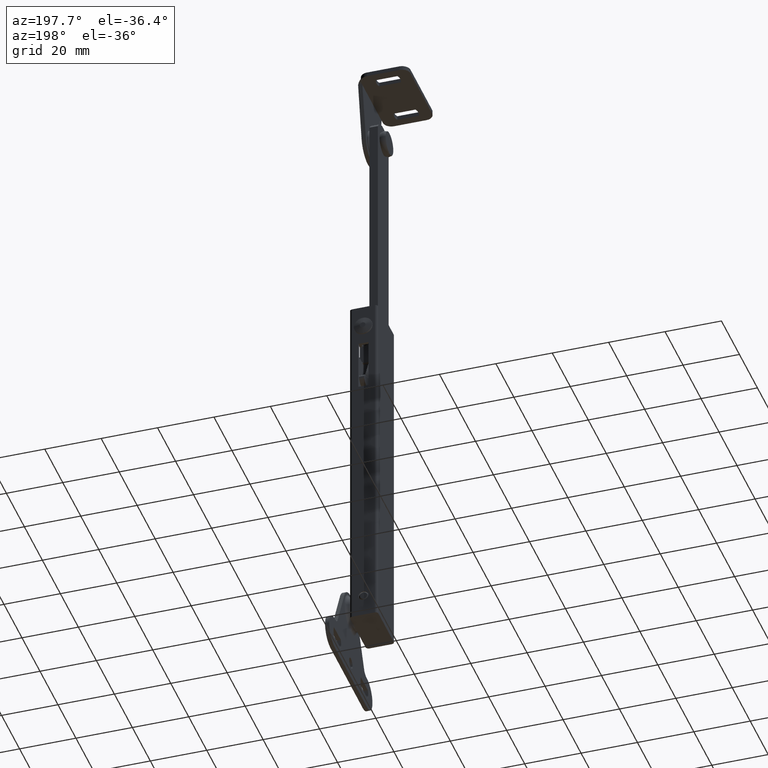
[diagram: clean part render]
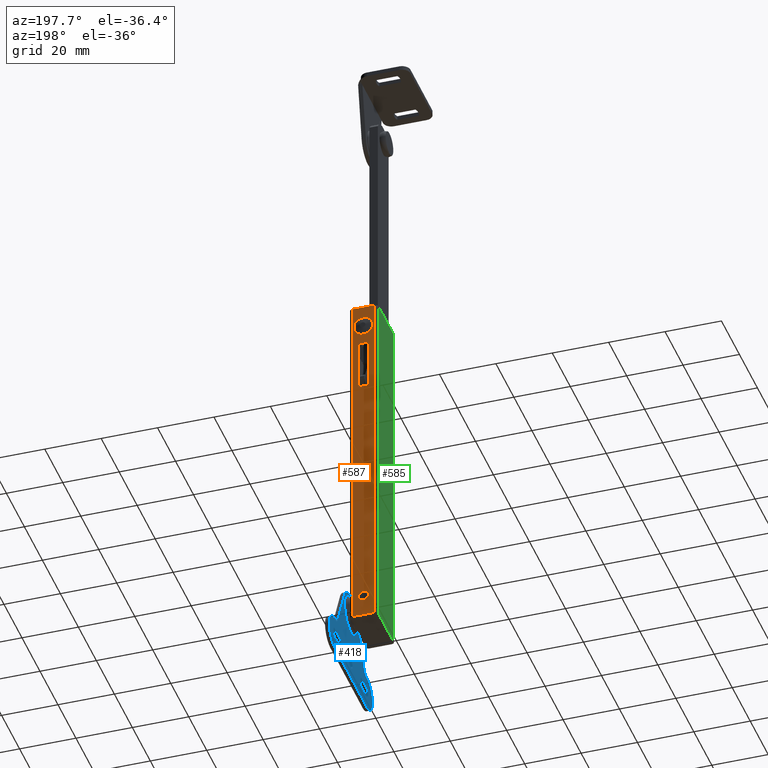
[diagram: same view with three faces highlighted in distinct colors, each labeled with its STEP entity id]
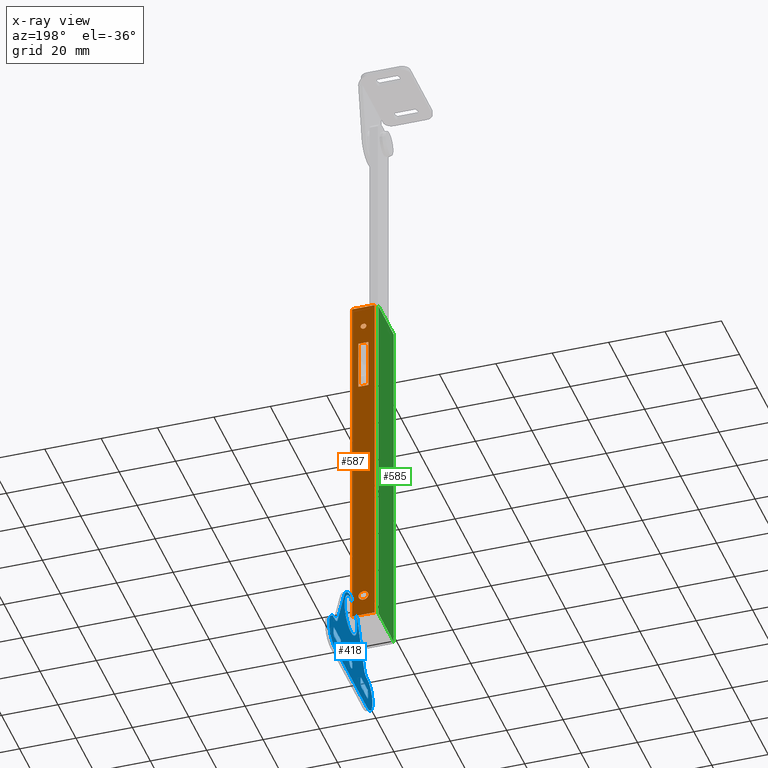
[diagram: x-ray of the same camera — body ghosted, the three highlighted faces saturated]
A machine part, auxiliary view with three faces highlighted in distinct colors.
The next image is the same camera in x-ray (body ghosted, the three faces saturated) — at least one of them is partly hidden behind the body in this view.
Their STEP definitions:

[orange] entity #587 — the highlighted planar face has unit normal (0, 1, 0).
#587=ADVANCED_FACE('',(#2357,#2358,#2359,#2360),#2356,.T.);
#2356=PLANE('',#3980);
#2357=FACE_OUTER_BOUND('',#3981,.T.);
#2358=FACE_BOUND('',#3982,.T.);
#2359=FACE_BOUND('',#3983,.T.);
#2360=FACE_BOUND('',#3984,.T.);
#3977=CARTESIAN_POINT('',(-9.79999999476E+00,9.50000000000E+00,-1.80000000000E+01));
#3978=DIRECTION('',(0.00000000000E+00,1.00000000000E+00,0.00000000000E+00));
#3979=DIRECTION('',(0.00000000000E+00,0.00000000000E+00,1.00000000000E+00));
#3980=AXIS2_PLACEMENT_3D('',#3977,#3978,#3979);
#3981=EDGE_LOOP('',(#5009,#5010,#5011,#5012));
#3982=EDGE_LOOP('',(#5013,#5014));
#3983=EDGE_LOOP('',(#5015,#5016,#5017,#5018));
#3984=EDGE_LOOP('',(#5019,#5020));
#5009=ORIENTED_EDGE('',*,*,#5630,.F.);
#5010=ORIENTED_EDGE('',*,*,#5631,.F.);
#5011=ORIENTED_EDGE('',*,*,#5599,.T.);
#5012=ORIENTED_EDGE('',*,*,#5629,.T.);
#5013=ORIENTED_EDGE('',*,*,#5632,.T.);
#5014=ORIENTED_EDGE('',*,*,#5633,.T.);
#5015=ORIENTED_EDGE('',*,*,#5634,.F.);
#5016=ORIENTED_EDGE('',*,*,#5635,.F.);
#5017=ORIENTED_EDGE('',*,*,#5636,.F.);
#5018=ORIENTED_EDGE('',*,*,#5637,.F.);
#5019=ORIENTED_EDGE('',*,*,#5638,.T.);
#5020=ORIENTED_EDGE('',*,*,#5639,.T.);
#5599=EDGE_CURVE('',#8458,#8451,#8459,.T.);
#5629=EDGE_CURVE('',#8451,#8654,#8661,.T.);
#5630=EDGE_CURVE('',#8667,#8654,#8668,.T.);
#5631=EDGE_CURVE('',#8458,#8667,#8674,.T.);
#5632=EDGE_CURVE('',#8680,#8681,#8682,.T.);
#5633=EDGE_CURVE('',#8681,#8680,#8688,.T.);
#5634=EDGE_CURVE('',#8694,#8695,#8696,.T.);
#5635=EDGE_CURVE('',#8702,#8694,#8703,.T.);
#5636=EDGE_CURVE('',#8709,#8702,#8710,.T.);
#5637=EDGE_CURVE('',#8695,#8709,#8716,.T.);
#5638=EDGE_CURVE('',#8722,#8723,#8724,.T.);
#5639=EDGE_CURVE('',#8723,#8722,#8730,.T.);
#8451=VERTEX_POINT('',#10753);
#8458=VERTEX_POINT('',#10758);
#8459=LINE('',#10759,#10760);
#8654=VERTEX_POINT('',#10878);
#8661=LINE('',#10883,#10884);
#8667=VERTEX_POINT('',#10886);
#8668=LINE('',#10887,#10888);
#8674=LINE('',#10890,#10891);
#8680=VERTEX_POINT('',#10893);
#8681=VERTEX_POINT('',#10894);
#8682=CIRCLE('',#10898,1.75000000000E+00);
#8688=CIRCLE('',#10902,1.75000000000E+00);
#8694=VERTEX_POINT('',#10903);
#8695=VERTEX_POINT('',#10904);
#8696=LINE('',#10905,#10906);
#8702=VERTEX_POINT('',#10908);
#8703=LINE('',#10909,#10910);
#8709=VERTEX_POINT('',#10912);
#8710=LINE('',#10913,#10914);
#8716=LINE('',#10916,#10917);
#8722=VERTEX_POINT('',#10919);
#8723=VERTEX_POINT('',#10920);
#8724=CIRCLE('',#10924,1.00000000000E+00);
#8730=CIRCLE('',#10928,1.00000000000E+00);
#10753=CARTESIAN_POINT('',(-9.00000000000E+00,9.50000000000E+00,-8.00000000000E+00));
#10758=CARTESIAN_POINT('',(-1.00000005236E+00,9.50000000000E+00,-8.00000000000E+00));
#10759=CARTESIAN_POINT('',(-1.00000005236E+00,9.50000000000E+00,-8.00000000000E+00));
#10760=VECTOR('',#10761,7.99999994764E+00);
#10761=DIRECTION('',(-1.00000000000E+00,0.00000000000E+00,0.00000000000E+00));
#10878=CARTESIAN_POINT('',(-9.00000000000E+00,9.50000000000E+00,1.21000000000E+02));
#10883=CARTESIAN_POINT('',(-9.00000000000E+00,9.50000000000E+00,-8.00000000000E+00));
#10884=VECTOR('',#10885,1.29000000000E+02);
#10885=DIRECTION('',(0.00000000000E+00,0.00000000000E+00,1.00000000000E+00));
#10886=CARTESIAN_POINT('',(-1.00000005236E+00,9.50000000000E+00,1.21000000000E+02));
#10887=CARTESIAN_POINT('',(-1.00000005236E+00,9.50000000000E+00,1.21000000000E+02));
#10888=VECTOR('',#10889,7.99999994764E+00);
#10889=DIRECTION('',(-1.00000000000E+00,0.00000000000E+00,0.00000000000E+00));
#10890=CARTESIAN_POINT('',(-1.00000005236E+00,9.50000000000E+00,-8.00000000000E+00));
#10891=VECTOR('',#10892,1.29000000000E+02);
#10892=DIRECTION('',(0.00000000000E+00,0.00000000000E+00,1.00000000000E+00));
#10893=CARTESIAN_POINT('',(-5.00000000000E+00,9.50000000000E+00,1.75000000000E+00));
#10894=CARTESIAN_POINT('',(-5.00000000000E+00,9.50000000000E+00,-1.75000000000E+00));
#10895=CARTESIAN_POINT('',(-5.00000000000E+00,9.50000000000E+00,0.00000000000E+00));
#10896=DIRECTION('',(-0.00000000000E+00,-1.00000000000E+00,0.00000000000E+00));
#10897=DIRECTION('',(-1.22460635382E-16,0.00000000000E+00,1.00000000000E+00));
#10898=AXIS2_PLACEMENT_3D('',#10895,#10896,#10897);
#10899=CARTESIAN_POINT('',(-5.00000000000E+00,9.50000000000E+00,0.00000000000E+00));
#10900=DIRECTION('',(-0.00000000000E+00,-1.00000000000E+00,0.00000000000E+00));
#10901=DIRECTION('',(-1.22460635382E-16,0.00000000000E+00,1.00000000000E+00));
#10902=AXIS2_PLACEMENT_3D('',#10899,#10900,#10901);
#10903=CARTESIAN_POINT('',(-6.79998800000E+00,9.50000000000E+00,8.80000000000E+01));
#10904=CARTESIAN_POINT('',(-6.79998800000E+00,9.50000000000E+00,1.06000000000E+02));
#10905=CARTESIAN_POINT('',(-6.79998800000E+00,9.50000000000E+00,8.80000000000E+01));
#10906=VECTOR('',#10907,1.80000000000E+01);
#10907=DIRECTION('',(0.00000000000E+00,0.00000000000E+00,1.00000000000E+00));
#10908=CARTESIAN_POINT('',(-3.19998200000E+00,9.50000000000E+00,8.80000000000E+01));
#10909=CARTESIAN_POINT('',(-3.19998200000E+00,9.50000000000E+00,8.80000000000E+01));
#10910=VECTOR('',#10911,3.60000600000E+00);
#10911=DIRECTION('',(-1.00000000000E+00,0.00000000000E+00,0.00000000000E+00));
#10912=CARTESIAN_POINT('',(-3.19998200000E+00,9.50000000000E+00,1.06000000000E+02));
#10913=CARTESIAN_POINT('',(-3.19998200000E+00,9.50000000000E+00,1.06000000000E+02));
#10914=VECTOR('',#10915,1.80000000000E+01);
#10915=DIRECTION('',(0.00000000000E+00,0.00000000000E+00,-1.00000000000E+00));
#10916=CARTESIAN_POINT('',(-6.79998800000E+00,9.50000000000E+00,1.06000000000E+02));
#10917=VECTOR('',#10918,3.60000600000E+00);
#10918=DIRECTION('',(1.00000000000E+00,0.00000000000E+00,0.00000000000E+00));
#10919=CARTESIAN_POINT('',(-5.00000000000E+00,9.50000000000E+00,1.14000000000E+02));
#10920=CARTESIAN_POINT('',(-5.00000000000E+00,9.50000000000E+00,1.12000000000E+02));
#10921=CARTESIAN_POINT('',(-5.00000000000E+00,9.50000000000E+00,1.13000000000E+02));
#10922=DIRECTION('',(-0.00000000000E+00,-1.00000000000E+00,0.00000000000E+00));
#10923=DIRECTION('',(-1.22460635382E-16,0.00000000000E+00,1.00000000000E+00));
#10924=AXIS2_PLACEMENT_3D('',#10921,#10922,#10923);
#10925=CARTESIAN_POINT('',(-5.00000000000E+00,9.50000000000E+00,1.13000000000E+02));
#10926=DIRECTION('',(-0.00000000000E+00,-1.00000000000E+00,0.00000000000E+00));
#10927=DIRECTION('',(-1.22460635382E-16,0.00000000000E+00,1.00000000000E+00));
#10928=AXIS2_PLACEMENT_3D('',#10925,#10926,#10927);

[blue] entity #418 — the highlighted planar face has unit normal (-1, 0, 0).
#418=ADVANCED_FACE('',(#637,#638,#639,#640,#641),#636,.T.);
#636=PLANE('',#2727);
#637=FACE_OUTER_BOUND('',#2728,.T.);
#638=FACE_BOUND('',#2729,.T.);
#639=FACE_BOUND('',#2730,.T.);
#640=FACE_BOUND('',#2731,.T.);
#641=FACE_BOUND('',#2732,.T.);
#2724=CARTESIAN_POINT('',(2.50000000000E+00,-2.90215549581E+01,1.14027687298E+01));
#2725=DIRECTION('',(-1.00000000000E+00,0.00000000000E+00,0.00000000000E+00));
#2726=DIRECTION('',(0.00000000000E+00,1.00000000000E+00,0.00000000000E+00));
#2727=AXIS2_PLACEMENT_3D('',#2724,#2725,#2726);
#2728=EDGE_LOOP('',(#4182,#4183,#4184,#4185,#4186,#4187,#4188,#4189,#4190));
#2729=EDGE_LOOP('',(#4191,#4192,#4193,#4194));
#2730=EDGE_LOOP('',(#4195,#4196,#4197,#4198));
#2731=EDGE_LOOP('',(#4199,#4200));
#2732=EDGE_LOOP('',(#4201,#4202));
#4182=ORIENTED_EDGE('',*,*,#5206,.F.);
#4183=ORIENTED_EDGE('',*,*,#5207,.F.);
#4184=ORIENTED_EDGE('',*,*,#5208,.T.);
#4185=ORIENTED_EDGE('',*,*,#5209,.F.);
#4186=ORIENTED_EDGE('',*,*,#5210,.F.);
#4187=ORIENTED_EDGE('',*,*,#5211,.F.);
#4188=ORIENTED_EDGE('',*,*,#5212,.F.);
#4189=ORIENTED_EDGE('',*,*,#5213,.T.);
#4190=ORIENTED_EDGE('',*,*,#5214,.F.);
#4191=ORIENTED_EDGE('',*,*,#5215,.T.);
#4192=ORIENTED_EDGE('',*,*,#5216,.F.);
#4193=ORIENTED_EDGE('',*,*,#5217,.T.);
#4194=ORIENTED_EDGE('',*,*,#5218,.F.);
#4195=ORIENTED_EDGE('',*,*,#5219,.T.);
#4196=ORIENTED_EDGE('',*,*,#5220,.F.);
#4197=ORIENTED_EDGE('',*,*,#5221,.T.);
#4198=ORIENTED_EDGE('',*,*,#5222,.F.);
#4199=ORIENTED_EDGE('',*,*,#5223,.T.);
#4200=ORIENTED_EDGE('',*,*,#5224,.T.);
#4201=ORIENTED_EDGE('',*,*,#5225,.F.);
#4202=ORIENTED_EDGE('',*,*,#5226,.F.);
#5206=EDGE_CURVE('',#5844,#5845,#5846,.T.);
#5207=EDGE_CURVE('',#5852,#5844,#5853,.T.);
#5208=EDGE_CURVE('',#5852,#5859,#5860,.T.);
#5209=EDGE_CURVE('',#5866,#5859,#5867,.T.);
#5210=EDGE_CURVE('',#5873,#5866,#5874,.T.);
#5211=EDGE_CURVE('',#5880,#5873,#5881,.T.);
#5212=EDGE_CURVE('',#5887,#5880,#5888,.T.);
#5213=EDGE_CURVE('',#5887,#5894,#5895,.T.);
#5214=EDGE_CURVE('',#5845,#5894,#5901,.T.);
#5215=EDGE_CURVE('',#5907,#5908,#5909,.T.);
#5216=EDGE_CURVE('',#5915,#5908,#5916,.T.);
#5217=EDGE_CURVE('',#5915,#5922,#5923,.T.);
#5218=EDGE_CURVE('',#5907,#5922,#5929,.T.);
#5219=EDGE_CURVE('',#5935,#5936,#5937,.T.);
#5220=EDGE_CURVE('',#5943,#5936,#5944,.T.);
#5221=EDGE_CURVE('',#5943,#5950,#5951,.T.);
#5222=EDGE_CURVE('',#5935,#5950,#5957,.T.);
#5223=EDGE_CURVE('',#5963,#5964,#5965,.T.);
#5224=EDGE_CURVE('',#5964,#5963,#5971,.T.);
#5225=EDGE_CURVE('',#5977,#5978,#5979,.T.);
#5226=EDGE_CURVE('',#5978,#5977,#5985,.T.);
#5844=VERTEX_POINT('',#9202);
#5845=VERTEX_POINT('',#9203);
#5846=CIRCLE('',#9207,8.00000000000E+00);
#5852=VERTEX_POINT('',#9208);
#5853=LINE('',#9209,#9210);
#5859=VERTEX_POINT('',#9212);
#5860=CIRCLE('',#9216,3.00000000000E+00);
#5866=VERTEX_POINT('',#9217);
#5867=LINE('',#9218,#9219);
#5873=VERTEX_POINT('',#9221);
#5874=CIRCLE('',#9225,6.00000000000E+00);
#5880=VERTEX_POINT('',#9226);
#5881=LINE('',#9227,#9228);
#5887=VERTEX_POINT('',#9230);
#5888=CIRCLE('',#9234,6.00000000000E+00);
#5894=VERTEX_POINT('',#9235);
#5895=CIRCLE('',#9239,3.00000000000E+00);
#5901=LINE('',#9240,#9241);
#5907=VERTEX_POINT('',#9243);
#5908=VERTEX_POINT('',#9244);
#5909=CIRCLE('',#9248,4.25000000000E+00);
#5915=VERTEX_POINT('',#9249);
#5916=LINE('',#9250,#9251);
#5922=VERTEX_POINT('',#9253);
#5923=CIRCLE('',#9257,4.25000000000E+00);
#5929=LINE('',#9258,#9259);
#5935=VERTEX_POINT('',#9261);
#5936=VERTEX_POINT('',#9262);
#5937=CIRCLE('',#9266,4.25000000000E+00);
#5943=VERTEX_POINT('',#9267);
#5944=LINE('',#9268,#9269);
#5950=VERTEX_POINT('',#9271);
#5951=CIRCLE('',#9275,4.25000000000E+00);
#5957=LINE('',#9276,#9277);
#5963=VERTEX_POINT('',#9279);
#5964=VERTEX_POINT('',#9280);
#5965=CIRCLE('',#9284,1.85000000000E+00);
#5971=CIRCLE('',#9288,1.85000000000E+00);
#5977=VERTEX_POINT('',#9289);
#5978=VERTEX_POINT('',#9290);
#5979=CIRCLE('',#9294,7.00000000000E+00);
#5985=CIRCLE('',#9298,7.00000000000E+00);
#9202=CARTESIAN_POINT('',(2.50000000000E+00,7.23069801154E+00,3.42301128627E+00));
#9203=CARTESIAN_POINT('',(2.50000000000E+00,-7.22729400000E+00,3.43020700000E+00));
#9204=CARTESIAN_POINT('',(2.50000000000E+00,0.00000000000E+00,0.00000000000E+00));
#9205=DIRECTION('',(1.00000000000E+00,0.00000000000E+00,-0.00000000000E+00));
#9206=DIRECTION('',(-0.00000000000E+00,-0.00000000000E+00,-1.00000000000E+00));
#9207=AXIS2_PLACEMENT_3D('',#9204,#9205,#9206);
#9208=CARTESIAN_POINT('',(2.50000000000E+00,1.46923433800E+01,-1.22982568516E+01));
#9209=CARTESIAN_POINT('',(2.50000000000E+00,1.46923433800E+01,-1.22982568516E+01));
#9210=VECTOR('',#9211,1.74021384740E+01);
#9211=DIRECTION('',(0.00000000000E+00,-4.28777496489E-01,9.03410127519E-01));
#9212=CARTESIAN_POINT('',(2.50000000000E+00,1.73968820000E+01,-1.40000000000E+01));
#9213=CARTESIAN_POINT('',(2.50000000000E+00,1.73968820000E+01,-1.10000000000E+01));
#9214=DIRECTION('',(1.00000000000E+00,0.00000000000E+00,-0.00000000000E+00));
#9215=DIRECTION('',(-0.00000000000E+00,-0.00000000000E+00,-1.00000000000E+00));
#9216=AXIS2_PLACEMENT_3D('',#9213,#9214,#9215);
#9217=CARTESIAN_POINT('',(2.50000000000E+00,1.79999996858E+01,-1.40000000000E+01));
#9218=CARTESIAN_POINT('',(2.50000000000E+00,1.79999996858E+01,-1.40000000000E+01));
#9219=VECTOR('',#9220,6.03117685841E-01);
#9220=DIRECTION('',(0.00000000000E+00,-1.00000000000E+00,0.00000000000E+00));
#9221=CARTESIAN_POINT('',(2.50000000000E+00,1.80000000000E+01,-2.60000000000E+01));
#9222=CARTESIAN_POINT('',(2.50000000000E+00,1.80000000000E+01,-2.00000000000E+01));
#9223=DIRECTION('',(1.00000000000E+00,0.00000000000E+00,-0.00000000000E+00));
#9224=DIRECTION('',(-0.00000000000E+00,-0.00000000000E+00,-1.00000000000E+00));
#9225=AXIS2_PLACEMENT_3D('',#9222,#9223,#9224);
#9226=CARTESIAN_POINT('',(2.50000000000E+00,-1.79999998953E+01,-2.60000000000E+01));
#9227=CARTESIAN_POINT('',(2.50000000000E+00,-1.79999998953E+01,-2.60000000000E+01));
#9228=VECTOR('',#9229,3.59999998953E+01);
#9229=DIRECTION('',(0.00000000000E+00,1.00000000000E+00,0.00000000000E+00));
#9230=CARTESIAN_POINT('',(2.50000000000E+00,-1.76041459581E+01,-1.40130706993E+01));
#9231=CARTESIAN_POINT('',(2.50000000000E+00,-1.80000000000E+01,-2.00000000000E+01));
#9232=DIRECTION('',(1.00000000000E+00,0.00000000000E+00,-0.00000000000E+00));
#9233=DIRECTION('',(-0.00000000000E+00,1.74532921449E-08,-1.00000000000E+00));
#9234=AXIS2_PLACEMENT_3D('',#9231,#9232,#9233);
#9235=CARTESIAN_POINT('',(2.50000000000E+00,-1.46959830000E+01,-1.23059390000E+01));
#9236=CARTESIAN_POINT('',(2.50000000000E+00,-1.74062190000E+01,-1.10196070000E+01));
#9237=DIRECTION('',(1.00000000000E+00,0.00000000000E+00,-0.00000000000E+00));
#9238=DIRECTION('',(-0.00000000000E+00,9.03410534974E-01,-4.28776638003E-01));
#9239=AXIS2_PLACEMENT_3D('',#9236,#9237,#9238);
#9240=CARTESIAN_POINT('',(2.50000000000E+00,-7.22729400000E+00,3.43020700000E+00));
#9241=VECTOR('',#9242,1.74185994360E+01);
#9242=DIRECTION('',(0.00000000000E+00,-4.28776666427E-01,-9.03410521484E-01));
#9243=CARTESIAN_POINT('',(2.50000000000E+00,-1.11737703545E+01,-2.18499910000E+01));
#9244=CARTESIAN_POINT('',(2.50000000000E+00,-1.11737747217E+01,-1.81499999676E+01));
#9245=CARTESIAN_POINT('',(2.50000000000E+00,-1.50000000000E+01,-2.00000000000E+01));
#9246=DIRECTION('',(1.00000000000E+00,0.00000000000E+00,-0.00000000000E+00));
#9247=DIRECTION('',(-0.00000000000E+00,-0.00000000000E+00,-1.00000000000E+00));
#9248=AXIS2_PLACEMENT_3D('',#9245,#9246,#9247);
#9249=CARTESIAN_POINT('',(2.50000000000E+00,-1.88262252137E+01,-1.81499998341E+01));
#9250=CARTESIAN_POINT('',(2.50000000000E+00,-1.88262252137E+01,-1.81499940000E+01));
#9251=VECTOR('',#9252,7.65245049201E+00);
#9252=DIRECTION('',(0.00000000000E+00,1.00000000000E+00,0.00000000000E+00));
#9253=CARTESIAN_POINT('',(2.50000000000E+00,-1.88262296455E+01,-2.18499910000E+01));
#9254=CARTESIAN_POINT('',(2.50000000000E+00,-1.50000000000E+01,-2.00000000000E+01));
#9255=DIRECTION('',(1.00000000000E+00,0.00000000000E+00,-0.00000000000E+00));
#9256=DIRECTION('',(-0.00000000000E+00,-0.00000000000E+00,-1.00000000000E+00));
#9257=AXIS2_PLACEMENT_3D('',#9254,#9255,#9256);
#9258=CARTESIAN_POINT('',(2.50000000000E+00,-1.11737703545E+01,-2.18499910000E+01));
#9259=VECTOR('',#9260,7.65245929095E+00);
#9260=DIRECTION('',(0.00000000000E+00,-1.00000000000E+00,0.00000000000E+00));
#9261=CARTESIAN_POINT('',(2.50000000000E+00,1.11737747863E+01,-1.81499998341E+01));
#9262=CARTESIAN_POINT('',(2.50000000000E+00,1.11737703545E+01,-2.18499910000E+01));
#9263=CARTESIAN_POINT('',(2.50000000000E+00,1.50000000000E+01,-2.00000000000E+01));
#9264=DIRECTION('',(1.00000000000E+00,0.00000000000E+00,-0.00000000000E+00));
#9265=DIRECTION('',(-0.00000000000E+00,-0.00000000000E+00,-1.00000000000E+00));
#9266=AXIS2_PLACEMENT_3D('',#9263,#9264,#9265);
#9267=CARTESIAN_POINT('',(2.50000000000E+00,1.88262296455E+01,-2.18499910000E+01));
#9268=CARTESIAN_POINT('',(2.50000000000E+00,1.88262296455E+01,-2.18499910000E+01));
#9269=VECTOR('',#9270,7.65245929095E+00);
#9270=DIRECTION('',(0.00000000000E+00,-1.00000000000E+00,0.00000000000E+00));
#9271=CARTESIAN_POINT('',(2.50000000000E+00,1.88262223929E+01,-1.81499940000E+01));
#9272=CARTESIAN_POINT('',(2.50000000000E+00,1.50000000000E+01,-2.00000000000E+01));
#9273=DIRECTION('',(1.00000000000E+00,0.00000000000E+00,-0.00000000000E+00));
#9274=DIRECTION('',(-0.00000000000E+00,-0.00000000000E+00,-1.00000000000E+00));
#9275=AXIS2_PLACEMENT_3D('',#9272,#9273,#9274);
#9276=CARTESIAN_POINT('',(2.50000000000E+00,1.11737747863E+01,-1.81499940000E+01));
#9277=VECTOR('',#9278,7.65244760662E+00);
#9278=DIRECTION('',(0.00000000000E+00,1.00000000000E+00,0.00000000000E+00));
#9279=CARTESIAN_POINT('',(2.50000000000E+00,0.00000000000E+00,-1.81500000000E+01));
#9280=CARTESIAN_POINT('',(2.50000000000E+00,-4.44089209850E-16,-2.18500000000E+01));
#9281=CARTESIAN_POINT('',(2.50000000000E+00,0.00000000000E+00,-2.00000000000E+01));
#9282=DIRECTION('',(1.00000000000E+00,0.00000000000E+00,-0.00000000000E+00));
#9283=DIRECTION('',(0.00000000000E+00,-1.22460635382E-16,1.00000000000E+00));
#9284=AXIS2_PLACEMENT_3D('',#9281,#9282,#9283);
#9285=CARTESIAN_POINT('',(2.50000000000E+00,0.00000000000E+00,-2.00000000000E+01));
#9286=DIRECTION('',(1.00000000000E+00,0.00000000000E+00,-0.00000000000E+00));
#9287=DIRECTION('',(0.00000000000E+00,-1.22460635382E-16,1.00000000000E+00));
#9288=AXIS2_PLACEMENT_3D('',#9285,#9286,#9287);
#9289=CARTESIAN_POINT('',(2.50000000000E+00,2.96059473233E-16,-7.00000000000E+00));
#9290=CARTESIAN_POINT('',(2.50000000000E+00,0.00000000000E+00,7.00000000000E+00));
#9291=CARTESIAN_POINT('',(2.50000000000E+00,0.00000000000E+00,0.00000000000E+00));
#9292=DIRECTION('',(-1.00000000000E+00,0.00000000000E+00,0.00000000000E+00));
#9293=DIRECTION('',(0.00000000000E+00,-1.22460635382E-16,1.00000000000E+00));
#9294=AXIS2_PLACEMENT_3D('',#9291,#9292,#9293);
#9295=CARTESIAN_POINT('',(2.50000000000E+00,0.00000000000E+00,0.00000000000E+00));
#9296=DIRECTION('',(-1.00000000000E+00,0.00000000000E+00,0.00000000000E+00));
#9297=DIRECTION('',(0.00000000000E+00,-1.22460635382E-16,1.00000000000E+00));
#9298=AXIS2_PLACEMENT_3D('',#9295,#9296,#9297);

[green] entity #585 — the highlighted planar face has unit normal (-1, 0, 0).
#585=ADVANCED_FACE('',(#2337),#2336,.T.);
#2336=PLANE('',#3970);
#2337=FACE_OUTER_BOUND('',#3971,.T.);
#3967=CARTESIAN_POINT('',(-1.00000000000E+01,-1.02000000087E+01,-1.80000000000E+01));
#3968=DIRECTION('',(-1.00000000000E+00,0.00000000000E+00,0.00000000000E+00));
#3969=DIRECTION('',(0.00000000000E+00,0.00000000000E+00,1.00000000000E+00));
#3970=AXIS2_PLACEMENT_3D('',#3967,#3968,#3969);
#3971=EDGE_LOOP('',(#5001,#5002,#5003,#5004));
#5001=ORIENTED_EDGE('',*,*,#5626,.F.);
#5002=ORIENTED_EDGE('',*,*,#5627,.F.);
#5003=ORIENTED_EDGE('',*,*,#5597,.T.);
#5004=ORIENTED_EDGE('',*,*,#5624,.T.);
#5597=EDGE_CURVE('',#8444,#8437,#8445,.T.);
#5624=EDGE_CURVE('',#8437,#8622,#8629,.T.);
#5626=EDGE_CURVE('',#8641,#8622,#8642,.T.);
#5627=EDGE_CURVE('',#8444,#8641,#8648,.T.);
#8437=VERTEX_POINT('',#10744);
#8444=VERTEX_POINT('',#10749);
#8445=LINE('',#10750,#10751);
#8622=VERTEX_POINT('',#10860);
#8629=LINE('',#10865,#10866);
#8641=VERTEX_POINT('',#10871);
#8642=LINE('',#10872,#10873);
#8648=LINE('',#10875,#10876);
#10744=CARTESIAN_POINT('',(-1.00000000000E+01,-8.50000000000E+00,-8.00000000000E+00));
#10749=CARTESIAN_POINT('',(-1.00000000000E+01,8.50000008727E+00,-8.00000000000E+00));
#10750=CARTESIAN_POINT('',(-1.00000000000E+01,8.50000008727E+00,-8.00000000000E+00));
#10751=VECTOR('',#10752,1.70000000873E+01);
#10752=DIRECTION('',(0.00000000000E+00,-1.00000000000E+00,0.00000000000E+00));
#10860=CARTESIAN_POINT('',(-1.00000000000E+01,-8.50000000000E+00,1.21000000000E+02));
#10865=CARTESIAN_POINT('',(-1.00000000000E+01,-8.50000000000E+00,-8.00000000000E+00));
#10866=VECTOR('',#10867,1.29000000000E+02);
#10867=DIRECTION('',(0.00000000000E+00,0.00000000000E+00,1.00000000000E+00));
#10871=CARTESIAN_POINT('',(-1.00000000000E+01,8.50000008727E+00,1.21000000000E+02));
#10872=CARTESIAN_POINT('',(-1.00000000000E+01,8.50000008727E+00,1.21000000000E+02));
#10873=VECTOR('',#10874,1.70000000873E+01);
#10874=DIRECTION('',(0.00000000000E+00,-1.00000000000E+00,0.00000000000E+00));
#10875=CARTESIAN_POINT('',(-1.00000000000E+01,8.50000008727E+00,-8.00000000000E+00));
#10876=VECTOR('',#10877,1.29000000000E+02);
#10877=DIRECTION('',(0.00000000000E+00,0.00000000000E+00,1.00000000000E+00));